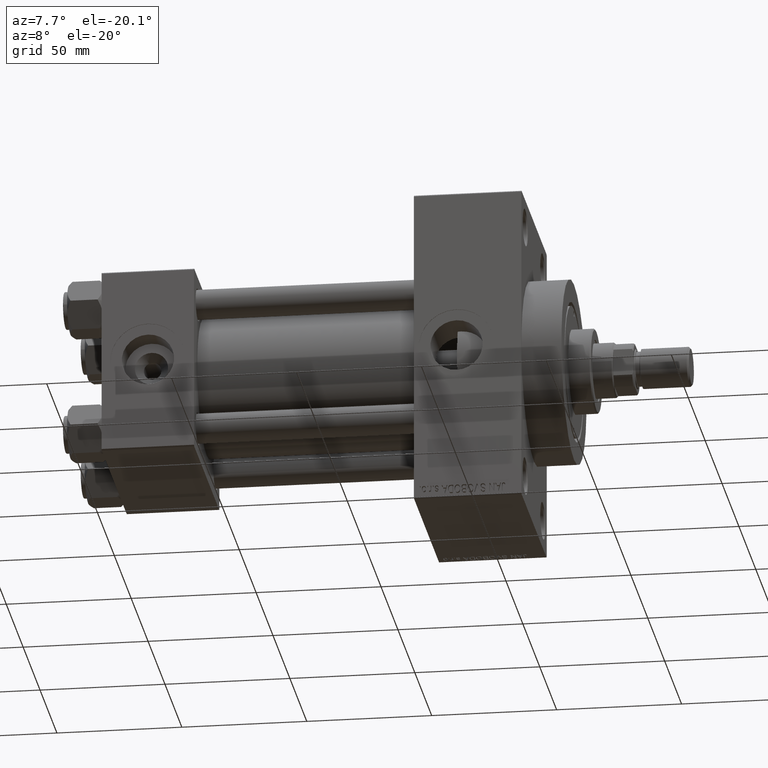
[diagram: clean part render]
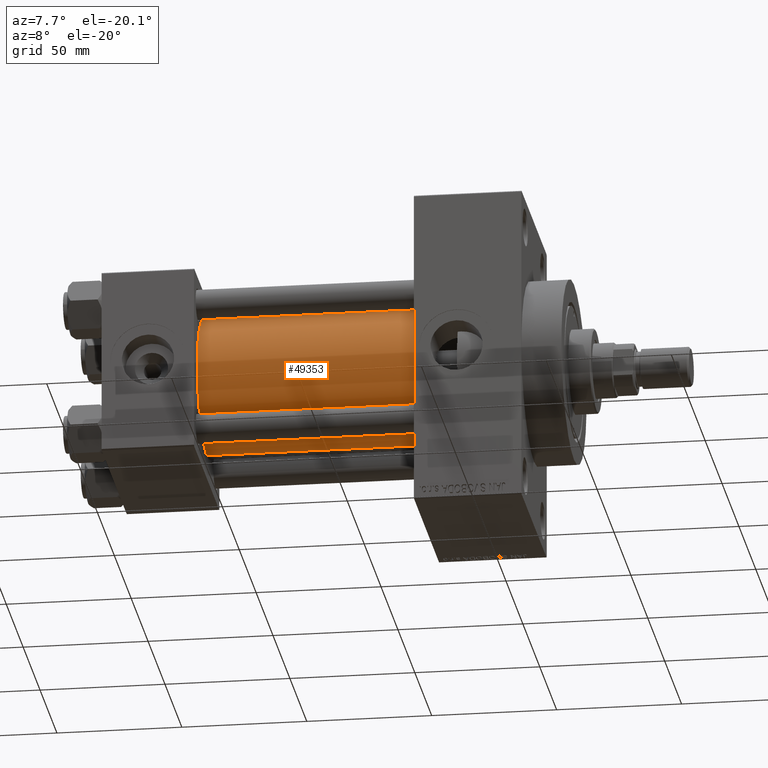
[diagram: same view with one face highlighted and labeled with its STEP entity id]
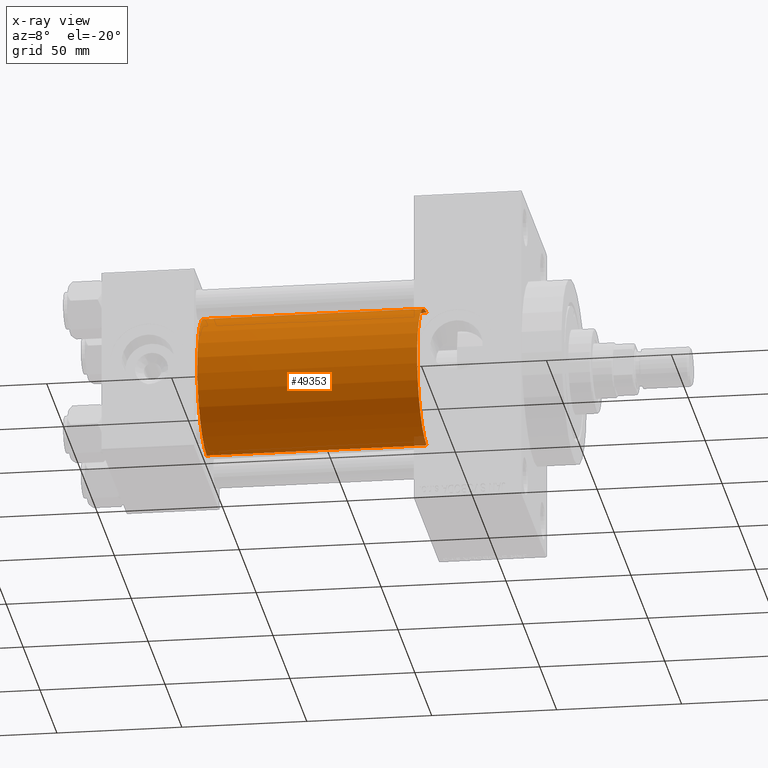
[diagram: x-ray of the same camera — body ghosted, the highlighted face saturated]
A machine part, auxiliary view. The second image highlights one B-rep face of the part: STEP entity #49353.
The next image is the same camera in x-ray: the body ghosted, the highlighted face saturated — about 0% of this face is hidden behind the body in this view.
In plain terms, the highlighted cylindrical surface (partial cylindrical patch) has radius 28 mm, axis along (-1, -0, -0).
Its self-contained STEP definition (entity closure, byte-faithful):
#1334 = DIRECTION ( 'NONE',  ( 0.000000000000000000, 0.000000000000000000, 1.000000000000000000 ) ) ;
#2299 = CARTESIAN_POINT ( 'NONE',  ( 125.0000000000000000, -2.602085213965210642E-15, 0.000000000000000000 ) ) ;
#2914 = VERTEX_POINT ( 'NONE', #27264 ) ;
#3168 = CARTESIAN_POINT ( 'NONE',  ( 37.00000000000000711, -2.602085213965210642E-15, 0.000000000000000000 ) ) ;
#3246 = DIRECTION ( 'NONE',  ( -1.000000000000000000, -0.000000000000000000, -0.000000000000000000 ) ) ;
#3750 = CARTESIAN_POINT ( 'NONE',  ( 37.00000000000000711, 8.269258236473784371E-16, -28.00000000000000000 ) ) ;
#5111 = FACE_OUTER_BOUND ( 'NONE', #12657, .T. ) ;
#8814 = VERTEX_POINT ( 'NONE', #38422 ) ;
#9564 = DIRECTION ( 'NONE',  ( -1.000000000000000000, -0.000000000000000000, -0.000000000000000000 ) ) ;
#9813 = LINE ( 'NONE', #36327, #35751 ) ;
#11377 = ORIENTED_EDGE ( 'NONE', *, *, #21169, .F. ) ;
#11475 = AXIS2_PLACEMENT_3D ( 'NONE', #3168, #40839, #30177 ) ;
#11746 = CIRCLE ( 'NONE', #25481, 28.00000000000000000 ) ;
#12152 = VERTEX_POINT ( 'NONE', #3750 ) ;
#12657 = EDGE_LOOP ( 'NONE', ( #11377, #36333, #39747, #18932 ) ) ;
#13439 = CYLINDRICAL_SURFACE ( 'NONE', #48720, 28.00000000000000000 ) ;
#15600 = EDGE_CURVE ( 'NONE', #33159, #2914, #11746, .T. ) ;
#18883 = LINE ( 'NONE', #49224, #19203 ) ;
#18932 = ORIENTED_EDGE ( 'NONE', *, *, #33407, .T. ) ;
#19203 = VECTOR ( 'NONE', #3246, 1000.000000000000000 ) ;
#21169 = EDGE_CURVE ( 'NONE', #2914, #12152, #18883, .T. ) ;
#24556 = DIRECTION ( 'NONE',  ( -1.000000000000000000, -0.000000000000000000, -0.000000000000000000 ) ) ;
#25481 = AXIS2_PLACEMENT_3D ( 'NONE', #2299, #48272, #44501 ) ;
#27264 = CARTESIAN_POINT ( 'NONE',  ( 125.0000000000000000, 8.269258236473784371E-16, -28.00000000000000000 ) ) ;
#30177 = DIRECTION ( 'NONE',  ( 0.000000000000000000, 0.000000000000000000, 1.000000000000000000 ) ) ;
#33159 = VERTEX_POINT ( 'NONE', #41378 ) ;
#33277 = CIRCLE ( 'NONE', #11475, 28.00000000000000000 ) ;
#33407 = EDGE_CURVE ( 'NONE', #8814, #12152, #33277, .T. ) ;
#35313 = EDGE_CURVE ( 'NONE', #33159, #8814, #9813, .T. ) ;
#35751 = VECTOR ( 'NONE', #9564, 1000.000000000000000 ) ;
#36327 = CARTESIAN_POINT ( 'NONE',  ( 125.0000000000000000, -2.602085213965210642E-15, 28.00000000000000000 ) ) ;
#36333 = ORIENTED_EDGE ( 'NONE', *, *, #15600, .F. ) ;
#36675 = CARTESIAN_POINT ( 'NONE',  ( 125.0000000000000000, -2.602085213965210642E-15, 0.000000000000000000 ) ) ;
#38422 = CARTESIAN_POINT ( 'NONE',  ( 37.00000000000000711, -2.602085213965210642E-15, 28.00000000000000000 ) ) ;
#39747 = ORIENTED_EDGE ( 'NONE', *, *, #35313, .T. ) ;
#40839 = DIRECTION ( 'NONE',  ( 1.000000000000000000, -0.000000000000000000, 0.000000000000000000 ) ) ;
#41378 = CARTESIAN_POINT ( 'NONE',  ( 125.0000000000000000, -2.602085213965210642E-15, 28.00000000000000000 ) ) ;
#44501 = DIRECTION ( 'NONE',  ( 0.000000000000000000, 0.000000000000000000, -1.000000000000000000 ) ) ;
#48272 = DIRECTION ( 'NONE',  ( 1.000000000000000000, 0.000000000000000000, 0.000000000000000000 ) ) ;
#48720 = AXIS2_PLACEMENT_3D ( 'NONE', #36675, #24556, #1334 ) ;
#49224 = CARTESIAN_POINT ( 'NONE',  ( 125.0000000000000000, 8.269258236473784371E-16, -28.00000000000000000 ) ) ;
#49353 = ADVANCED_FACE ( 'NONE', ( #5111 ), #13439, .T. ) ;